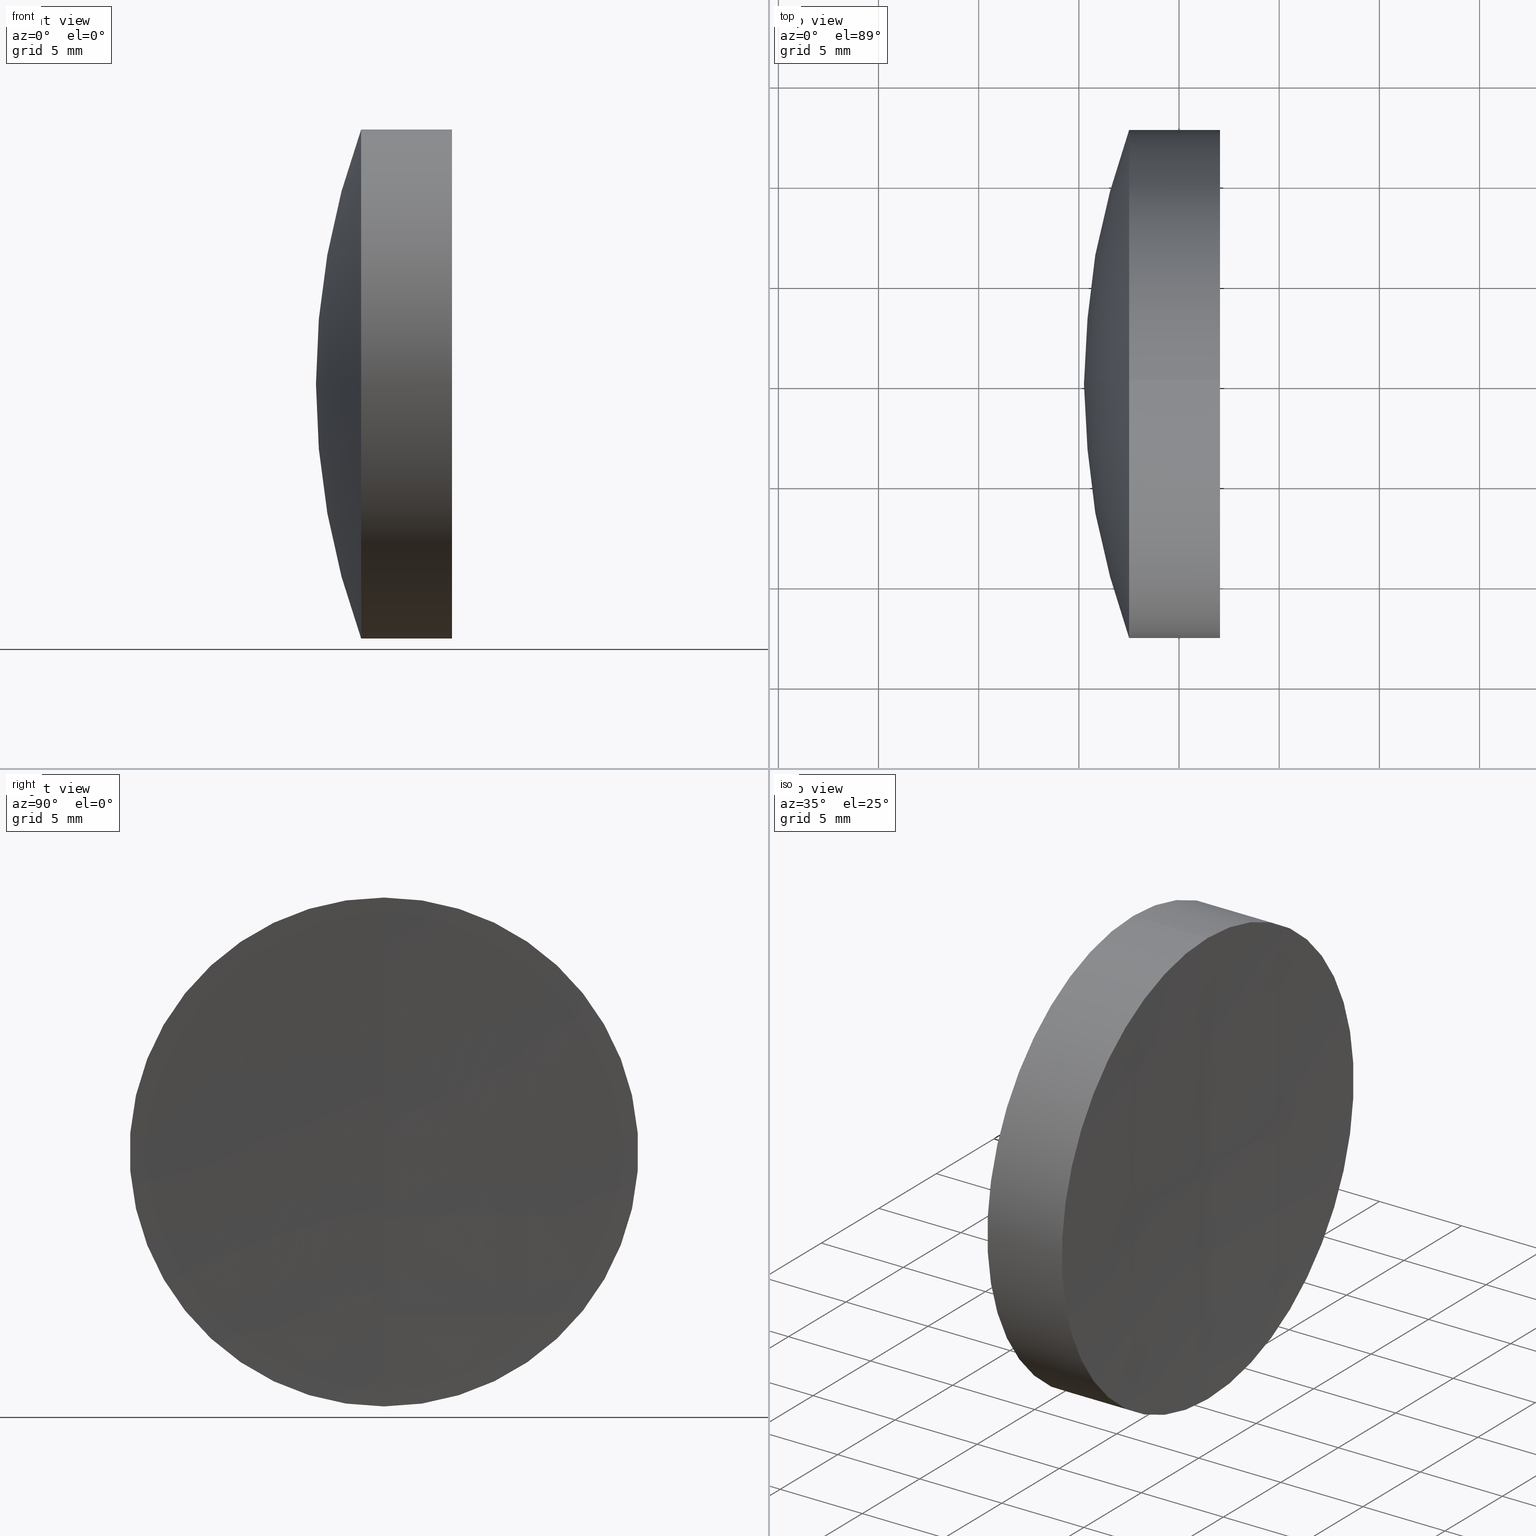
[diagram: canonical four-view strip — front | top / right | iso, engineering-drawing reading convention]
A machine part, canonical four-view strip (front | top / right | iso — engineering-drawing reading convention). The complete STEP part file that produces these views, byte-faithful:
ISO-10303-21;
HEADER;
FILE_DESCRIPTION (( 'STEP AP214' ),
    '1' );
FILE_NAME ('145120.STEP',
    '2019-06-03T01:30:47',
    ( 'user' ),
    ( '΢���й�' ),
    'SwSTEP 2.0',
    'SolidWorks 2016',
    '' );
FILE_SCHEMA (( 'AUTOMOTIVE_DESIGN' ));
ENDSEC;

DATA;
#1 = DIRECTION ( 'NONE',  ( -1.000000000000000000, -0.0000000000000000000, -0.0000000000000000000 ) ) ;
#2 = PRODUCT ( '145120', '145120', '', ( #275 ) ) ;
#3 = EDGE_CURVE ( 'NONE', #231, #253, #102, .T. ) ;
#4 = STYLED_ITEM ( 'NONE', ( #334 ), #294 ) ;
#5 = AXIS2_PLACEMENT_3D ( 'NONE', #16, #152, #75 ) ;
#6 = COLOUR_RGB ( '',1.000000000000000000, 1.000000000000000000, 1.000000000000000000 ) ;
#7 = CARTESIAN_POINT ( 'NONE',  ( 0.0000000000000000000, 0.0000000000000000000, 0.0000000000000000000 ) ) ;
#8 = EDGE_CURVE ( 'NONE', #344, #224, #245, .T. ) ;
#9 = AXIS2_PLACEMENT_3D ( 'NONE', #262, #78, #234 ) ;
#10 =( LENGTH_UNIT ( ) NAMED_UNIT ( * ) SI_UNIT ( .MILLI., .METRE. ) );
#11 = EDGE_LOOP ( 'NONE', ( #237, #134, #220 ) ) ;
#12 = DIRECTION ( 'NONE',  ( 0.0000000000000000000, 0.0000000000000000000, 1.000000000000000000 ) ) ;
#13 = ADVANCED_FACE ( 'NONE', ( #169 ), #95, .T. ) ;
#14 = VECTOR ( 'NONE', #19, 1000.000000000000000 ) ;
#15 = CARTESIAN_POINT ( 'NONE',  ( 124.5233095260452400, 0.0000000000000000000, 0.0000000000000000000 ) ) ;
#16 = CARTESIAN_POINT ( 'NONE',  ( 263.0842744864173700, 0.0000000000000000000, 6.938893903138834500E-015 ) ) ;
#17 = CARTESIAN_POINT ( 'NONE',  ( 124.5233095260452400, 0.0000000000000000000, 12.70000000000000600 ) ) ;
#18 = CARTESIAN_POINT ( 'NONE',  ( 307.0473420726939900, 0.0000000000000000000, 0.0000000000000000000 ) ) ;
#19 = DIRECTION ( 'NONE',  ( -1.000000000000000000, -0.0000000000000000000, -0.0000000000000000000 ) ) ;
#20 = CARTESIAN_POINT ( 'NONE',  ( 724.6542744864173100, 0.0000000000000000000, 0.0000000000000000000 ) ) ;
#21 = DIRECTION ( 'NONE',  ( 0.0000000000000000000, -1.000000000000000000, -1.224646799147353200E-016 ) ) ;
#22 = ORIENTED_EDGE ( 'NONE', *, *, #193, .T. ) ;
#23 = AXIS2_PLACEMENT_3D ( 'NONE', #267, #59, #292 ) ;
#24 = PRODUCT_DEFINITION_CONTEXT ( 'detailed design', #118, 'design' ) ;
#25 =( GEOMETRIC_REPRESENTATION_CONTEXT ( 3 ) GLOBAL_UNCERTAINTY_ASSIGNED_CONTEXT ( ( #320 ) ) GLOBAL_UNIT_ASSIGNED_CONTEXT ( ( #10, #145, #326 ) ) REPRESENTATION_CONTEXT ( 'NONE', 'WORKASPACE' ) );
#26 = FACE_OUTER_BOUND ( 'NONE', #243, .T. ) ;
#27 = FILL_AREA_STYLE ('',( #56 ) ) ;
#28 = CARTESIAN_POINT ( 'NONE',  ( 307.0473420726939900, 0.0000000000000000000, 12.69999999999999900 ) ) ;
#29 = EDGE_CURVE ( 'NONE', #60, #182, #166, .T. ) ;
#30 = SURFACE_STYLE_FILL_AREA ( #122 ) ;
#31 = CARTESIAN_POINT ( 'NONE',  ( 306.8542744864172400, 0.0000000000000000000, -2.558287163418821000E-014 ) ) ;
#32 = EDGE_CURVE ( 'NONE', #82, #253, #240, .T. ) ;
#33 = AXIS2_PLACEMENT_3D ( 'NONE', #236, #207, #52 ) ;
#34 = ORIENTED_EDGE ( 'NONE', *, *, #8, .F. ) ;
#35 = SPHERICAL_SURFACE ( 'NONE', #68, 42.16999999999998000 ) ;
#36 = ORIENTED_EDGE ( 'NONE', *, *, #327, .F. ) ;
#37 =( NAMED_UNIT ( * ) SI_UNIT ( $, .STERADIAN. ) SOLID_ANGLE_UNIT ( ) );
#38 = ORIENTED_EDGE ( 'NONE', *, *, #327, .T. ) ;
#39 = DIRECTION ( 'NONE',  ( 0.0000000000000000000, 0.0000000000000000000, 1.000000000000000000 ) ) ;
#40 = AXIS2_PLACEMENT_3D ( 'NONE', #184, #162, #186 ) ;
#41 = CIRCLE ( 'NONE', #132, 42.16999999999998000 ) ;
#42 = ADVANCED_FACE ( 'NONE', ( #26 ), #35, .T. ) ;
#43 = CARTESIAN_POINT ( 'NONE',  ( 305.2542744864173300, 0.0000000000000000000, 9.521061679141028100E-015 ) ) ;
#44 = CIRCLE ( 'NONE', #298, 12.70000000000001500 ) ;
#45 = CIRCLE ( 'NONE', #315, 36.89999999999999100 ) ;
#46 = CARTESIAN_POINT ( 'NONE',  ( 303.2964480163323600, 0.0000000000000000000, 0.0000000000000000000 ) ) ;
#47 = DIRECTION ( 'NONE',  ( 0.0000000000000000000, 0.0000000000000000000, -1.000000000000000000 ) ) ;
#48 = CARTESIAN_POINT ( 'NONE',  ( 263.0842744864173700, 0.0000000000000000000, 6.938893903138834500E-015 ) ) ;
#49 = ORIENTED_EDGE ( 'NONE', *, *, #93, .F. ) ;
#50 = EDGE_CURVE ( 'NONE', #107, #60, #300, .T. ) ;
#51 = AXIS2_PLACEMENT_3D ( 'NONE', #76, #232, #47 ) ;
#52 = DIRECTION ( 'NONE',  ( 0.0000000000000000000, 0.0000000000000000000, 1.000000000000000000 ) ) ;
#53 = DIRECTION ( 'NONE',  ( 0.0000000000000000000, -1.000000000000000000, 0.0000000000000000000 ) ) ;
#54 = DIRECTION ( 'NONE',  ( 0.0000000000000000000, 0.0000000000000000000, -1.000000000000000000 ) ) ;
#55 = EDGE_LOOP ( 'NONE', ( #154, #22, #146 ) ) ;
#56 = FILL_AREA_STYLE_COLOUR ( '', #345 ) ;
#57 = ORIENTED_EDGE ( 'NONE', *, *, #32, .T. ) ;
#58 = FACE_OUTER_BOUND ( 'NONE', #306, .T. ) ;
#59 = DIRECTION ( 'NONE',  ( -0.0000000000000000000, -1.000000000000000000, -0.0000000000000000000 ) ) ;
#60 = VERTEX_POINT ( 'NONE', #130 ) ;
#61 = AXIS2_PLACEMENT_3D ( 'NONE', #138, #133, #319 ) ;
#62 = STYLED_ITEM ( 'NONE', ( #268 ), #194 ) ;
#63 = EDGE_LOOP ( 'NONE', ( #198, #214, #168 ) ) ;
#64 = CYLINDRICAL_SURFACE ( 'NONE', #61, 12.70000000000000600 ) ;
#65 = EDGE_CURVE ( 'NONE', #231, #297, #88, .T. ) ;
#66 = CLOSED_SHELL ( 'NONE', ( #332, #13, #172, #254, #121, #42 ) ) ;
#67 = FILL_AREA_STYLE ('',( #202 ) ) ;
#68 = AXIS2_PLACEMENT_3D ( 'NONE', #48, #286, #155 ) ;
#69 = DIRECTION ( 'NONE',  ( -0.0000000000000000000, 1.000000000000000000, 1.224646799147353200E-016 ) ) ;
#70 = ADVANCED_FACE ( 'NONE', ( #161 ), #290, .F. ) ;
#71 = VERTEX_POINT ( 'NONE', #203 ) ;
#72 =( NAMED_UNIT ( * ) PLANE_ANGLE_UNIT ( ) SI_UNIT ( $, .RADIAN. ) );
#73 = FACE_OUTER_BOUND ( 'NONE', #159, .T. ) ;
#74 = DIRECTION ( 'NONE',  ( -1.000000000000000000, -0.0000000000000000000, -0.0000000000000000000 ) ) ;
#75 = DIRECTION ( 'NONE',  ( 0.0000000000000000000, 0.0000000000000000000, 1.000000000000000000 ) ) ;
#76 = CARTESIAN_POINT ( 'NONE',  ( 263.0842744864173700, 0.0000000000000000000, 6.938893903138834500E-015 ) ) ;
#77 = ORIENTED_EDGE ( 'NONE', *, *, #303, .T. ) ;
#78 = DIRECTION ( 'NONE',  ( -1.000000000000000000, -0.0000000000000000000, -0.0000000000000000000 ) ) ;
#79 = PRESENTATION_LAYER_ASSIGNMENT (  '', '', ( #4 ) ) ;
#80 = PRESENTATION_LAYER_ASSIGNMENT (  '', '', ( #62 ) ) ;
#81 = VECTOR ( 'NONE', #230, 1000.000000000000000 ) ;
#82 = VERTEX_POINT ( 'NONE', #101 ) ;
#83 = CARTESIAN_POINT ( 'NONE',  ( 303.2964480163323600, 0.0000000000000000000, 0.0000000000000000000 ) ) ;
#84 = EDGE_CURVE ( 'NONE', #82, #71, #149, .T. ) ;
#85 = AXIS2_PLACEMENT_3D ( 'NONE', #335, #150, #310 ) ;
#86 = EDGE_CURVE ( 'NONE', #89, #344, #218, .T. ) ;
#87 = ORIENTED_EDGE ( 'NONE', *, *, #271, .F. ) ;
#88 = LINE ( 'NONE', #105, #14 ) ;
#89 = VERTEX_POINT ( 'NONE', #284 ) ;
#90 = APPLICATION_PROTOCOL_DEFINITION ( 'draft international standard', 'automotive_design', 1998, #118 ) ;
#91 = FACE_OUTER_BOUND ( 'NONE', #289, .T. ) ;
#92 = ORIENTED_EDGE ( 'NONE', *, *, #296, .T. ) ;
#93 = EDGE_CURVE ( 'NONE', #60, #344, #281, .T. ) ;
#94 = MECHANICAL_DESIGN_GEOMETRIC_PRESENTATION_REPRESENTATION (  '', ( #4 ), #114 ) ;
#95 = CYLINDRICAL_SURFACE ( 'NONE', #33, 12.70000000000000600 ) ;
#96 = MECHANICAL_DESIGN_GEOMETRIC_PRESENTATION_REPRESENTATION (  '', ( #62 ), #115 ) ;
#97 = SURFACE_STYLE_USAGE ( .BOTH. , #280 ) ;
#98 = ADVANCED_FACE ( 'NONE', ( #308 ), #246, .T. ) ;
#99 = ORIENTED_EDGE ( 'NONE', *, *, #180, .F. ) ;
#100 = DIRECTION ( 'NONE',  ( 0.0000000000000000000, -1.224646799147353200E-016, 1.000000000000000000 ) ) ;
#101 = CARTESIAN_POINT ( 'NONE',  ( 307.0473420726939900, 1.555301434917138800E-015, -12.69999999999999900 ) ) ;
#102 = CIRCLE ( 'NONE', #304, 417.8000000000000700 ) ;
#103 = SPHERICAL_SURFACE ( 'NONE', #265, 36.89999999999999100 ) ;
#104 = DIRECTION ( 'NONE',  ( 0.0000000000000000000, 0.0000000000000000000, 1.000000000000000000 ) ) ;
#105 = CARTESIAN_POINT ( 'NONE',  ( -0.5519199926577972300, 0.0000000000000000000, 12.70000000000000600 ) ) ;
#106 = AXIS2_PLACEMENT_3D ( 'NONE', #337, #178, #153 ) ;
#107 = VERTEX_POINT ( 'NONE', #43 ) ;
#108 = CARTESIAN_POINT ( 'NONE',  ( 263.0842744864173700, 0.0000000000000000000, 6.938893903138834500E-015 ) ) ;
#109 = CIRCLE ( 'NONE', #147, 12.69999999999999900 ) ;
#110 =( NAMED_UNIT ( * ) SI_UNIT ( $, .STERADIAN. ) SOLID_ANGLE_UNIT ( ) );
#111 = ORIENTED_EDGE ( 'NONE', *, *, #222, .T. ) ;
#112 = SPHERICAL_SURFACE ( 'NONE', #249, 42.16999999999998000 ) ;
#113 = ORIENTED_EDGE ( 'NONE', *, *, #343, .F. ) ;
#114 =( GEOMETRIC_REPRESENTATION_CONTEXT ( 3 ) GLOBAL_UNCERTAINTY_ASSIGNED_CONTEXT ( ( #263 ) ) GLOBAL_UNIT_ASSIGNED_CONTEXT ( ( #135, #291, #110 ) ) REPRESENTATION_CONTEXT ( 'NONE', 'WORKASPACE' ) );
#115 =( GEOMETRIC_REPRESENTATION_CONTEXT ( 3 ) GLOBAL_UNCERTAINTY_ASSIGNED_CONTEXT ( ( #229 ) ) GLOBAL_UNIT_ASSIGNED_CONTEXT ( ( #221, #195, #37 ) ) REPRESENTATION_CONTEXT ( 'NONE', 'WORKASPACE' ) );
#116 = CIRCLE ( 'NONE', #40, 12.70000000000000600 ) ;
#117 = CIRCLE ( 'NONE', #277, 42.16999999999998000 ) ;
#118 = APPLICATION_CONTEXT ( 'automotive_design' ) ;
#119 = STYLED_ITEM ( 'NONE', ( #225 ), #140 ) ;
#120 = DIRECTION ( 'NONE',  ( -0.0000000000000000000, -1.000000000000000000, -0.0000000000000000000 ) ) ;
#121 = ADVANCED_FACE ( 'NONE', ( #73 ), #187, .T. ) ;
#122 = FILL_AREA_STYLE ('',( #228 ) ) ;
#123 = EDGE_LOOP ( 'NONE', ( #293, #92, #111 ) ) ;
#124 = DIRECTION ( 'NONE',  ( 0.0000000000000000000, 0.0000000000000000000, 1.000000000000000000 ) ) ;
#125 = FACE_OUTER_BOUND ( 'NONE', #55, .T. ) ;
#126 = CARTESIAN_POINT ( 'NONE',  ( 263.0842744864173700, 0.0000000000000000000, 6.938893903138834500E-015 ) ) ;
#127 = CARTESIAN_POINT ( 'NONE',  ( -0.5519199926577972300, 1.555301434917139200E-015, -12.70000000000000600 ) ) ;
#128 = CARTESIAN_POINT ( 'NONE',  ( 307.0473420726939900, 0.0000000000000000000, 0.0000000000000000000 ) ) ;
#129 = ORIENTED_EDGE ( 'NONE', *, *, #251, .T. ) ;
#130 = CARTESIAN_POINT ( 'NONE',  ( 303.2964480163323600, 0.0000000000000000000, 12.70000000000000600 ) ) ;
#131 = DIRECTION ( 'NONE',  ( -1.000000000000000000, -0.0000000000000000000, -0.0000000000000000000 ) ) ;
#132 = AXIS2_PLACEMENT_3D ( 'NONE', #108, #69, #256 ) ;
#133 = DIRECTION ( 'NONE',  ( -1.000000000000000000, -0.0000000000000000000, -0.0000000000000000000 ) ) ;
#134 = ORIENTED_EDGE ( 'NONE', *, *, #8, .T. ) ;
#135 =( LENGTH_UNIT ( ) NAMED_UNIT ( * ) SI_UNIT ( .MILLI., .METRE. ) );
#136 = VECTOR ( 'NONE', #164, 1000.000000000000000 ) ;
#137 = FACE_OUTER_BOUND ( 'NONE', #11, .T. ) ;
#138 = CARTESIAN_POINT ( 'NONE',  ( -0.5519199926577972300, 0.0000000000000000000, 0.0000000000000000000 ) ) ;
#139 = ORIENTED_EDGE ( 'NONE', *, *, #93, .T. ) ;
#140 = MANIFOLD_SOLID_BREP ( '��ת3', #248 ) ;
#141 = PRESENTATION_LAYER_ASSIGNMENT (  '', '', ( #119 ) ) ;
#142 = ORIENTED_EDGE ( 'NONE', *, *, #50, .T. ) ;
#143 = ORIENTED_EDGE ( 'NONE', *, *, #84, .T. ) ;
#144 = DIRECTION ( 'NONE',  ( 1.000000000000000000, 0.0000000000000000000, 0.0000000000000000000 ) ) ;
#145 =( NAMED_UNIT ( * ) PLANE_ANGLE_UNIT ( ) SI_UNIT ( $, .RADIAN. ) );
#146 = ORIENTED_EDGE ( 'NONE', *, *, #343, .T. ) ;
#147 = AXIS2_PLACEMENT_3D ( 'NONE', #128, #285, #104 ) ;
#148 = ADVANCED_FACE ( 'NONE', ( #125 ), #112, .F. ) ;
#149 = LINE ( 'NONE', #127, #81 ) ;
#150 = DIRECTION ( 'NONE',  ( -1.000000000000000000, -0.0000000000000000000, -0.0000000000000000000 ) ) ;
#151 = SPHERICAL_SURFACE ( 'NONE', #299, 417.8000000000000700 ) ;
#152 = DIRECTION ( 'NONE',  ( 0.0000000000000000000, 1.000000000000000000, 0.0000000000000000000 ) ) ;
#153 = DIRECTION ( 'NONE',  ( 0.0000000000000000000, 0.0000000000000000000, 1.000000000000000000 ) ) ;
#154 = ORIENTED_EDGE ( 'NONE', *, *, #296, .F. ) ;
#155 = DIRECTION ( 'NONE',  ( 0.0000000000000000000, 0.0000000000000000000, 1.000000000000000000 ) ) ;
#156 = SHAPE_DEFINITION_REPRESENTATION ( #217, #194 ) ;
#157 = AXIS2_PLACEMENT_3D ( 'NONE', #259, #257, #124 ) ;
#158 = DIRECTION ( 'NONE',  ( 0.0000000000000000000, 1.224646799147353000E-016, -1.000000000000000000 ) ) ;
#159 = EDGE_LOOP ( 'NONE', ( #87, #273, #139, #165 ) ) ;
#160 = CARTESIAN_POINT ( 'NONE',  ( 300.2542744864173300, 0.0000000000000000000, 4.679420559480362800E-015 ) ) ;
#161 = FACE_OUTER_BOUND ( 'NONE', #123, .T. ) ;
#162 = DIRECTION ( 'NONE',  ( -1.000000000000000000, -0.0000000000000000000, -0.0000000000000000000 ) ) ;
#163 = ORIENTED_EDGE ( 'NONE', *, *, #3, .F. ) ;
#164 = DIRECTION ( 'NONE',  ( -1.000000000000000000, -0.0000000000000000000, -0.0000000000000000000 ) ) ;
#165 = ORIENTED_EDGE ( 'NONE', *, *, #86, .F. ) ;
#166 = CIRCLE ( 'NONE', #9, 12.70000000000000600 ) ;
#167 = AXIS2_PLACEMENT_3D ( 'NONE', #7, #302, #144 ) ;
#168 = ORIENTED_EDGE ( 'NONE', *, *, #32, .F. ) ;
#169 = FACE_OUTER_BOUND ( 'NONE', #204, .T. ) ;
#170 = ORIENTED_EDGE ( 'NONE', *, *, #65, .T. ) ;
#171 = AXIS2_PLACEMENT_3D ( 'NONE', #15, #74, #200 ) ;
#172 = ADVANCED_FACE ( 'NONE', ( #137 ), #103, .T. ) ;
#173 = CARTESIAN_POINT ( 'NONE',  ( 724.6542744864173100, 0.0000000000000000000, 0.0000000000000000000 ) ) ;
#174 = DIRECTION ( 'NONE',  ( 0.0000000000000000000, 0.0000000000000000000, -1.000000000000000000 ) ) ;
#175 = ORIENTED_EDGE ( 'NONE', *, *, #50, .F. ) ;
#176 = EDGE_LOOP ( 'NONE', ( #34, #192, #129 ) ) ;
#177 = DIRECTION ( 'NONE',  ( -1.000000000000000000, -0.0000000000000000000, -0.0000000000000000000 ) ) ;
#178 = DIRECTION ( 'NONE',  ( 0.0000000000000000000, 1.000000000000000000, 0.0000000000000000000 ) ) ;
#179 = DIRECTION ( 'NONE',  ( 0.0000000000000000000, 1.000000000000000000, -0.0000000000000000000 ) ) ;
#180 = EDGE_CURVE ( 'NONE', #182, #60, #210, .T. ) ;
#181 = DIRECTION ( 'NONE',  ( 0.0000000000000000000, 1.224646799147353200E-016, -1.000000000000000000 ) ) ;
#182 = VERTEX_POINT ( 'NONE', #309 ) ;
#183 = DIRECTION ( 'NONE',  ( 0.0000000000000000000, -1.000000000000000000, -1.224646799147353200E-016 ) ) ;
#184 = CARTESIAN_POINT ( 'NONE',  ( 302.5086398407654000, 0.0000000000000000000, 0.0000000000000000000 ) ) ;
#185 = PRODUCT_DEFINITION ( 'δ֪', '', #199, #24 ) ;
#186 = DIRECTION ( 'NONE',  ( 0.0000000000000000000, 0.0000000000000000000, 1.000000000000000000 ) ) ;
#187 = CYLINDRICAL_SURFACE ( 'NONE', #171, 12.70000000000000600 ) ;
#188 = FACE_OUTER_BOUND ( 'NONE', #63, .T. ) ;
#189 = FACE_OUTER_BOUND ( 'NONE', #325, .T. ) ;
#190 = DIRECTION ( 'NONE',  ( 0.0000000000000000000, 0.0000000000000000000, -1.000000000000000000 ) ) ;
#191 = MECHANICAL_DESIGN_GEOMETRIC_PRESENTATION_REPRESENTATION (  '', ( #119 ), #206 ) ;
#192 = ORIENTED_EDGE ( 'NONE', *, *, #287, .T. ) ;
#193 = EDGE_CURVE ( 'NONE', #341, #297, #117, .T. ) ;
#194 = ADVANCED_BREP_SHAPE_REPRESENTATION ( '145120', ( #294, #140, #167 ), #25 ) ;
#195 =( NAMED_UNIT ( * ) PLANE_ANGLE_UNIT ( ) SI_UNIT ( $, .RADIAN. ) );
#196 = DIRECTION ( 'NONE',  ( -1.000000000000000000, -0.0000000000000000000, -0.0000000000000000000 ) ) ;
#197 = CARTESIAN_POINT ( 'NONE',  ( 263.0842744864173700, 0.0000000000000000000, 6.938893903138834500E-015 ) ) ;
#198 = ORIENTED_EDGE ( 'NONE', *, *, #322, .F. ) ;
#199 = PRODUCT_DEFINITION_FORMATION_WITH_SPECIFIED_SOURCE ( '�κ�', '', #2, .NOT_KNOWN. ) ;
#200 = DIRECTION ( 'NONE',  ( 0.0000000000000000000, 0.0000000000000000000, 1.000000000000000000 ) ) ;
#201 = VECTOR ( 'NONE', #282, 1000.000000000000000 ) ;
#202 = FILL_AREA_STYLE_COLOUR ( '', #208 ) ;
#203 = CARTESIAN_POINT ( 'NONE',  ( 303.2964480163323600, 1.555301434917139600E-015, -12.70000000000000300 ) ) ;
#204 = EDGE_LOOP ( 'NONE', ( #264, #311, #209, #49 ) ) ;
#205 = CARTESIAN_POINT ( 'NONE',  ( 337.1542744864173100, 0.0000000000000000000, 6.938893903907228400E-015 ) ) ;
#206 =( GEOMETRIC_REPRESENTATION_CONTEXT ( 3 ) GLOBAL_UNCERTAINTY_ASSIGNED_CONTEXT ( ( #270 ) ) GLOBAL_UNIT_ASSIGNED_CONTEXT ( ( #255, #72, #226 ) ) REPRESENTATION_CONTEXT ( 'NONE', 'WORKASPACE' ) );
#207 = DIRECTION ( 'NONE',  ( -1.000000000000000000, -0.0000000000000000000, -0.0000000000000000000 ) ) ;
#208 = COLOUR_RGB ( '',1.000000000000000000, 1.000000000000000000, 1.000000000000000000 ) ;
#209 = ORIENTED_EDGE ( 'NONE', *, *, #287, .F. ) ;
#210 = CIRCLE ( 'NONE', #223, 12.70000000000000600 ) ;
#211 = CARTESIAN_POINT ( 'NONE',  ( 303.2964480163323600, 0.0000000000000000000, 0.0000000000000000000 ) ) ;
#212 = CIRCLE ( 'NONE', #317, 42.16999999999998000 ) ;
#213 = CARTESIAN_POINT ( 'NONE',  ( 124.5233095260452400, 1.555301434917139200E-015, -12.70000000000000600 ) ) ;
#214 = ORIENTED_EDGE ( 'NONE', *, *, #3, .T. ) ;
#215 = DIRECTION ( 'NONE',  ( 0.0000000000000000000, 0.0000000000000000000, 1.000000000000000000 ) ) ;
#216 = ORIENTED_EDGE ( 'NONE', *, *, #303, .F. ) ;
#217 = PRODUCT_DEFINITION_SHAPE ( 'NONE', 'NONE',  #185 ) ;
#218 = CIRCLE ( 'NONE', #85, 12.70000000000000600 ) ;
#219 = PRODUCT_RELATED_PRODUCT_CATEGORY ( 'part', '', ( #2 ) ) ;
#220 = ORIENTED_EDGE ( 'NONE', *, *, #251, .F. ) ;
#221 =( LENGTH_UNIT ( ) NAMED_UNIT ( * ) SI_UNIT ( .MILLI., .METRE. ) );
#222 = EDGE_CURVE ( 'NONE', #71, #297, #44, .T. ) ;
#223 = AXIS2_PLACEMENT_3D ( 'NONE', #211, #131, #316 ) ;
#224 = VERTEX_POINT ( 'NONE', #160 ) ;
#225 = PRESENTATION_STYLE_ASSIGNMENT (( #97 ) ) ;
#226 =( NAMED_UNIT ( * ) SI_UNIT ( $, .STERADIAN. ) SOLID_ANGLE_UNIT ( ) );
#227 = ADVANCED_FACE ( 'NONE', ( #188 ), #347, .F. ) ;
#228 = FILL_AREA_STYLE_COLOUR ( '', #6 ) ;
#229 = UNCERTAINTY_MEASURE_WITH_UNIT (LENGTH_MEASURE( 1.000000000000000100E-005 ), #221, 'distance_accuracy_value', 'NONE');
#230 = DIRECTION ( 'NONE',  ( -1.000000000000000000, -0.0000000000000000000, -0.0000000000000000000 ) ) ;
#231 = VERTEX_POINT ( 'NONE', #28 ) ;
#232 = DIRECTION ( 'NONE',  ( 0.0000000000000000000, -1.000000000000000000, 0.0000000000000000000 ) ) ;
#233 = LINE ( 'NONE', #213, #136 ) ;
#234 = DIRECTION ( 'NONE',  ( 0.0000000000000000000, 0.0000000000000000000, 1.000000000000000000 ) ) ;
#235 = SPHERICAL_SURFACE ( 'NONE', #5, 42.16999999999998000 ) ;
#236 = CARTESIAN_POINT ( 'NONE',  ( 124.5233095260452400, 0.0000000000000000000, 0.0000000000000000000 ) ) ;
#237 = ORIENTED_EDGE ( 'NONE', *, *, #86, .T. ) ;
#238 = CARTESIAN_POINT ( 'NONE',  ( 302.5086398407654000, -1.555301434917138000E-015, 12.70000000000000500 ) ) ;
#239 = CARTESIAN_POINT ( 'NONE',  ( 263.0842744864173700, 0.0000000000000000000, 6.938893903138834500E-015 ) ) ;
#240 = CIRCLE ( 'NONE', #342, 417.8000000000000700 ) ;
#241 = CARTESIAN_POINT ( 'NONE',  ( 724.6542744864173100, 0.0000000000000000000, 0.0000000000000000000 ) ) ;
#242 = CARTESIAN_POINT ( 'NONE',  ( 303.2964480163323600, 0.0000000000000000000, 12.70000000000001000 ) ) ;
#243 = EDGE_LOOP ( 'NONE', ( #36, #142, #99 ) ) ;
#244 = DIRECTION ( 'NONE',  ( -0.0000000000000000000, -1.000000000000000000, -0.0000000000000000000 ) ) ;
#245 = CIRCLE ( 'NONE', #321, 36.89999999999999100 ) ;
#246 = CYLINDRICAL_SURFACE ( 'NONE', #157, 12.70000000000000600 ) ;
#247 = DIRECTION ( 'NONE',  ( 0.0000000000000000000, 1.000000000000000000, -0.0000000000000000000 ) ) ;
#248 = CLOSED_SHELL ( 'NONE', ( #227, #98, #70, #148, #279, #307 ) ) ;
#249 = AXIS2_PLACEMENT_3D ( 'NONE', #197, #333, #12 ) ;
#250 = CIRCLE ( 'NONE', #329, 12.70000000000001500 ) ;
#251 = EDGE_CURVE ( 'NONE', #89, #224, #45, .T. ) ;
#252 = SURFACE_SIDE_STYLE ('',( #261 ) ) ;
#253 = VERTEX_POINT ( 'NONE', #31 ) ;
#254 = ADVANCED_FACE ( 'NONE', ( #323 ), #274, .T. ) ;
#255 =( LENGTH_UNIT ( ) NAMED_UNIT ( * ) SI_UNIT ( .MILLI., .METRE. ) );
#256 = DIRECTION ( 'NONE',  ( 0.0000000000000000000, -1.224646799147353200E-016, 1.000000000000000000 ) ) ;
#257 = DIRECTION ( 'NONE',  ( -1.000000000000000000, -0.0000000000000000000, -0.0000000000000000000 ) ) ;
#258 = ORIENTED_EDGE ( 'NONE', *, *, #65, .F. ) ;
#259 = CARTESIAN_POINT ( 'NONE',  ( -0.5519199926577972300, 0.0000000000000000000, 0.0000000000000000000 ) ) ;
#260 = DIRECTION ( 'NONE',  ( 0.0000000000000000000, 0.0000000000000000000, -1.000000000000000000 ) ) ;
#261 = SURFACE_STYLE_FILL_AREA ( #67 ) ;
#262 = CARTESIAN_POINT ( 'NONE',  ( 303.2964480163323600, 0.0000000000000000000, 0.0000000000000000000 ) ) ;
#263 = UNCERTAINTY_MEASURE_WITH_UNIT (LENGTH_MEASURE( 1.000000000000000100E-005 ), #135, 'distance_accuracy_value', 'NONE');
#264 = ORIENTED_EDGE ( 'NONE', *, *, #29, .T. ) ;
#265 = AXIS2_PLACEMENT_3D ( 'NONE', #330, #120, #174 ) ;
#266 = ORIENTED_EDGE ( 'NONE', *, *, #322, .T. ) ;
#267 = CARTESIAN_POINT ( 'NONE',  ( 337.1542744864173100, 0.0000000000000000000, 6.938893903907228400E-015 ) ) ;
#268 = PRESENTATION_STYLE_ASSIGNMENT (( #324 ) ) ;
#269 = DIRECTION ( 'NONE',  ( 0.0000000000000000000, 0.0000000000000000000, 1.000000000000000000 ) ) ;
#270 = UNCERTAINTY_MEASURE_WITH_UNIT (LENGTH_MEASURE( 1.000000000000000100E-005 ), #255, 'distance_accuracy_value', 'NONE');
#271 = EDGE_CURVE ( 'NONE', #182, #89, #233, .T. ) ;
#272 = ORIENTED_EDGE ( 'NONE', *, *, #84, .F. ) ;
#273 = ORIENTED_EDGE ( 'NONE', *, *, #180, .T. ) ;
#274 = SPHERICAL_SURFACE ( 'NONE', #23, 36.89999999999999100 ) ;
#275 = PRODUCT_CONTEXT ( 'NONE', #276, 'mechanical' ) ;
#276 = APPLICATION_CONTEXT ( 'automotive_design' ) ;
#277 = AXIS2_PLACEMENT_3D ( 'NONE', #239, #53, #54 ) ;
#278 = AXIS2_PLACEMENT_3D ( 'NONE', #18, #177, #336 ) ;
#279 = ADVANCED_FACE ( 'NONE', ( #58 ), #64, .T. ) ;
#280 = SURFACE_SIDE_STYLE ('',( #30 ) ) ;
#281 = LINE ( 'NONE', #17, #201 ) ;
#282 = DIRECTION ( 'NONE',  ( -1.000000000000000000, -0.0000000000000000000, -0.0000000000000000000 ) ) ;
#283 = DIRECTION ( 'NONE',  ( -0.0000000000000000000, 1.000000000000000000, 1.224646799147353200E-016 ) ) ;
#284 = CARTESIAN_POINT ( 'NONE',  ( 302.5086398407654000, 0.0000000000000000000, -12.69999999999999800 ) ) ;
#285 = DIRECTION ( 'NONE',  ( -1.000000000000000000, -0.0000000000000000000, -0.0000000000000000000 ) ) ;
#286 = DIRECTION ( 'NONE',  ( 0.0000000000000000000, 1.000000000000000000, 0.0000000000000000000 ) ) ;
#287 = EDGE_CURVE ( 'NONE', #344, #89, #116, .T. ) ;
#288 = CARTESIAN_POINT ( 'NONE',  ( 724.6542744864173100, 0.0000000000000000000, 0.0000000000000000000 ) ) ;
#289 = EDGE_LOOP ( 'NONE', ( #163, #216, #57 ) ) ;
#290 = SPHERICAL_SURFACE ( 'NONE', #106, 42.16999999999998000 ) ;
#291 =( NAMED_UNIT ( * ) PLANE_ANGLE_UNIT ( ) SI_UNIT ( $, .RADIAN. ) );
#292 = DIRECTION ( 'NONE',  ( 0.0000000000000000000, 0.0000000000000000000, -1.000000000000000000 ) ) ;
#293 = ORIENTED_EDGE ( 'NONE', *, *, #193, .F. ) ;
#294 = MANIFOLD_SOLID_BREP ( '��ת1', #66 ) ;
#295 = CARTESIAN_POINT ( 'NONE',  ( 337.1542744864173100, 0.0000000000000000000, 6.938893903907228400E-015 ) ) ;
#296 = EDGE_CURVE ( 'NONE', #341, #71, #41, .T. ) ;
#297 = VERTEX_POINT ( 'NONE', #242 ) ;
#298 = AXIS2_PLACEMENT_3D ( 'NONE', #83, #1, #215 ) ;
#299 = AXIS2_PLACEMENT_3D ( 'NONE', #241, #339, #260 ) ;
#300 = CIRCLE ( 'NONE', #51, 42.16999999999998000 ) ;
#301 = ORIENTED_EDGE ( 'NONE', *, *, #29, .F. ) ;
#302 = DIRECTION ( 'NONE',  ( 0.0000000000000000000, 0.0000000000000000000, 1.000000000000000000 ) ) ;
#303 = EDGE_CURVE ( 'NONE', #82, #231, #109, .T. ) ;
#304 = AXIS2_PLACEMENT_3D ( 'NONE', #288, #183, #158 ) ;
#305 = APPLICATION_PROTOCOL_DEFINITION ( 'draft international standard', 'automotive_design', 1998, #276 ) ;
#306 = EDGE_LOOP ( 'NONE', ( #272, #77, #170, #331 ) ) ;
#307 = ADVANCED_FACE ( 'NONE', ( #91 ), #151, .F. ) ;
#308 = FACE_OUTER_BOUND ( 'NONE', #314, .T. ) ;
#309 = CARTESIAN_POINT ( 'NONE',  ( 303.2964480163323600, 1.555301434917139200E-015, -12.70000000000000600 ) ) ;
#310 = DIRECTION ( 'NONE',  ( 0.0000000000000000000, 0.0000000000000000000, 1.000000000000000000 ) ) ;
#311 = ORIENTED_EDGE ( 'NONE', *, *, #271, .T. ) ;
#312 = SURFACE_STYLE_FILL_AREA ( #27 ) ;
#313 = CARTESIAN_POINT ( 'NONE',  ( 305.2542744864173300, 0.0000000000000000000, 9.521061679141028100E-015 ) ) ;
#314 = EDGE_LOOP ( 'NONE', ( #266, #143, #113, #258 ) ) ;
#315 = AXIS2_PLACEMENT_3D ( 'NONE', #295, #247, #269 ) ;
#316 = DIRECTION ( 'NONE',  ( 0.0000000000000000000, 0.0000000000000000000, 1.000000000000000000 ) ) ;
#317 = AXIS2_PLACEMENT_3D ( 'NONE', #126, #283, #100 ) ;
#318 = SURFACE_STYLE_USAGE ( .BOTH. , #346 ) ;
#319 = DIRECTION ( 'NONE',  ( 0.0000000000000000000, 0.0000000000000000000, 1.000000000000000000 ) ) ;
#320 = UNCERTAINTY_MEASURE_WITH_UNIT (LENGTH_MEASURE( 1.000000000000000100E-005 ), #10, 'distance_accuracy_value', 'NONE');
#321 = AXIS2_PLACEMENT_3D ( 'NONE', #205, #21, #181 ) ;
#322 = EDGE_CURVE ( 'NONE', #231, #82, #338, .T. ) ;
#323 = FACE_OUTER_BOUND ( 'NONE', #176, .T. ) ;
#324 = SURFACE_STYLE_USAGE ( .BOTH. , #252 ) ;
#325 = EDGE_LOOP ( 'NONE', ( #175, #38, #301 ) ) ;
#326 =( NAMED_UNIT ( * ) SI_UNIT ( $, .STERADIAN. ) SOLID_ANGLE_UNIT ( ) );
#327 = EDGE_CURVE ( 'NONE', #107, #182, #212, .T. ) ;
#328 = AXIS2_PLACEMENT_3D ( 'NONE', #173, #244, #190 ) ;
#329 = AXIS2_PLACEMENT_3D ( 'NONE', #46, #196, #39 ) ;
#330 = CARTESIAN_POINT ( 'NONE',  ( 337.1542744864173100, 0.0000000000000000000, 6.938893903907228400E-015 ) ) ;
#331 = ORIENTED_EDGE ( 'NONE', *, *, #222, .F. ) ;
#332 = ADVANCED_FACE ( 'NONE', ( #189 ), #235, .T. ) ;
#333 = DIRECTION ( 'NONE',  ( 0.0000000000000000000, 1.000000000000000000, 0.0000000000000000000 ) ) ;
#334 = PRESENTATION_STYLE_ASSIGNMENT (( #318 ) ) ;
#335 = CARTESIAN_POINT ( 'NONE',  ( 302.5086398407654000, 0.0000000000000000000, 0.0000000000000000000 ) ) ;
#336 = DIRECTION ( 'NONE',  ( 0.0000000000000000000, 0.0000000000000000000, 1.000000000000000000 ) ) ;
#337 = CARTESIAN_POINT ( 'NONE',  ( 263.0842744864173700, 0.0000000000000000000, 6.938893903138834500E-015 ) ) ;
#338 = CIRCLE ( 'NONE', #278, 12.69999999999999900 ) ;
#339 = DIRECTION ( 'NONE',  ( -0.0000000000000000000, -1.000000000000000000, -0.0000000000000000000 ) ) ;
#340 = DIRECTION ( 'NONE',  ( 0.0000000000000000000, 0.0000000000000000000, 1.000000000000000000 ) ) ;
#341 = VERTEX_POINT ( 'NONE', #313 ) ;
#342 = AXIS2_PLACEMENT_3D ( 'NONE', #20, #179, #340 ) ;
#343 = EDGE_CURVE ( 'NONE', #297, #71, #250, .T. ) ;
#344 = VERTEX_POINT ( 'NONE', #238 ) ;
#345 = COLOUR_RGB ( '',1.000000000000000000, 1.000000000000000000, 1.000000000000000000 ) ;
#346 = SURFACE_SIDE_STYLE ('',( #312 ) ) ;
#347 = SPHERICAL_SURFACE ( 'NONE', #328, 417.8000000000000700 ) ;
ENDSEC;
END-ISO-10303-21;
